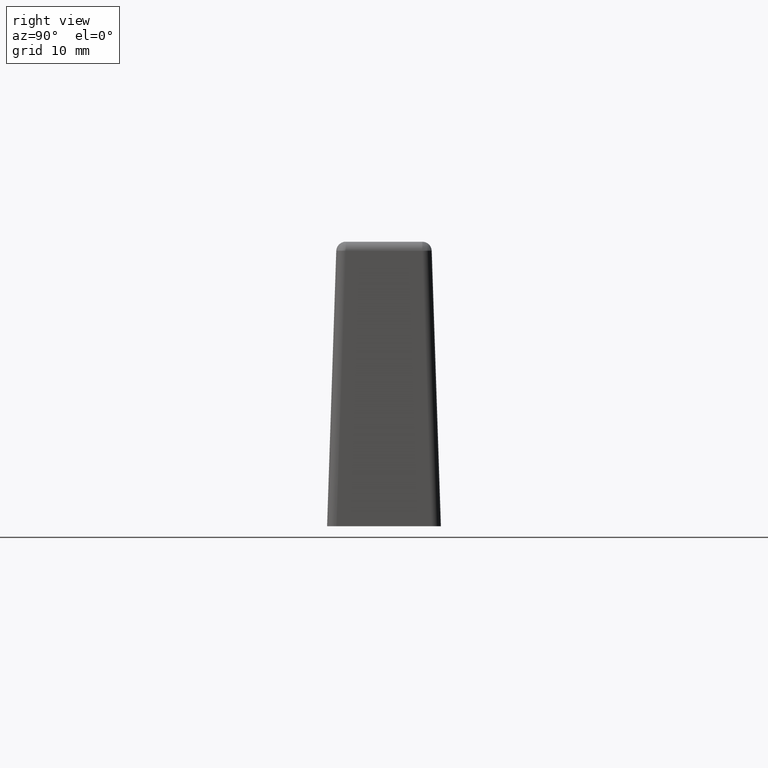
[diagram: clean part render]
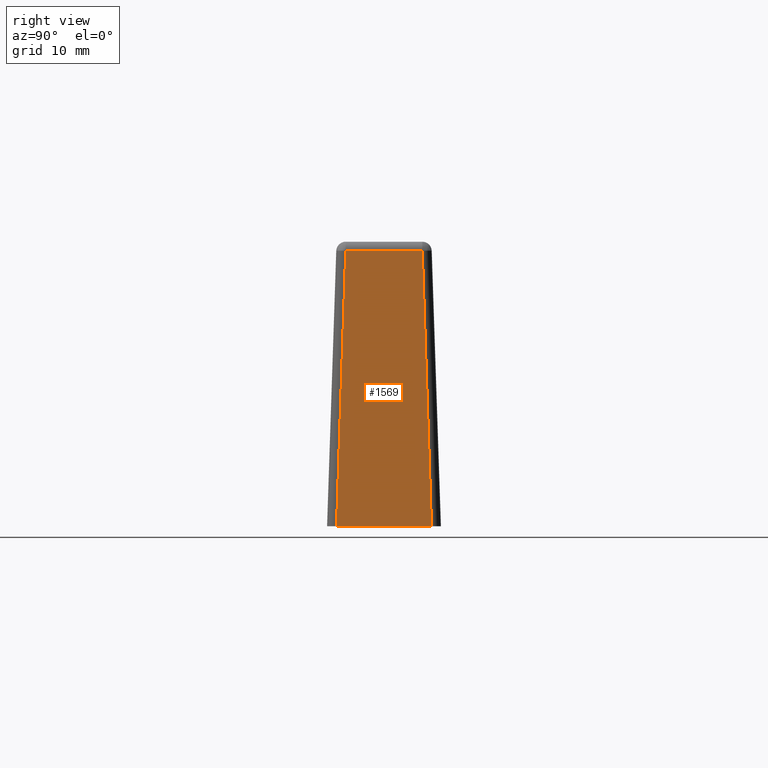
[diagram: same view with one face highlighted and labeled with its STEP entity id]
A machine part, right view. The second image highlights one B-rep face of the part: STEP entity #1569.
In plain terms, the highlighted face is a freeform B-spline surface patch.
Its self-contained STEP definition (entity closure, byte-faithful):
#992=CARTESIAN_POINT('',(34.032189467089196,-4.032544596117241,29.033315976440299));
#993=VERTEX_POINT('',#992);
#1038=CARTESIAN_POINT('',(35.0,-5.000555131204679,0.0));
#1039=VERTEX_POINT('',#1038);
#1055=CARTESIAN_POINT('',(34.032189467089196,-4.032544596117241,29.033315976440299));
#1056=CARTESIAN_POINT('',(35.0,-5.000555131204679,0.0));
#1057=QUASI_UNIFORM_CURVE('',1,(#1055,#1056),.UNSPECIFIED.,.F.,.U.);
#1058=EDGE_CURVE('',#993,#1039,#1057,.T.);
#1085=CARTESIAN_POINT('',(34.032189467089196,4.032544596117241,29.033315976440299));
#1086=VERTEX_POINT('',#1085);
#1100=CARTESIAN_POINT('',(35.0,5.000555131204790,0.0));
#1101=VERTEX_POINT('',#1100);
#1102=CARTESIAN_POINT('',(35.0,5.000555131204790,0.0));
#1103=CARTESIAN_POINT('',(34.032189467089196,4.032544596117241,29.033315976440299));
#1104=QUASI_UNIFORM_CURVE('',1,(#1102,#1103),.UNSPECIFIED.,.F.,.U.);
#1105=EDGE_CURVE('',#1101,#1086,#1104,.T.);
#1381=CARTESIAN_POINT('',(34.032189467089196,4.032544596117241,29.033315976440299));
#1382=CARTESIAN_POINT('',(34.032189467089196,-4.032544596117241,29.033315976440299));
#1383=QUASI_UNIFORM_CURVE('',1,(#1381,#1382),.UNSPECIFIED.,.F.,.U.);
#1384=EDGE_CURVE('',#1086,#993,#1383,.T.);
#1495=CARTESIAN_POINT('',(35.0,5.000555131204790,0.0));
#1496=CARTESIAN_POINT('',(35.0,-5.000555131204679,0.0));
#1497=QUASI_UNIFORM_CURVE('',1,(#1495,#1496),.UNSPECIFIED.,.F.,.U.);
#1498=EDGE_CURVE('',#1101,#1039,#1497,.T.);
#1558=CARTESIAN_POINT('',(35.048342134243107,-5.500110475544672,-1.450214076750992));
#1559=CARTESIAN_POINT('',(33.983847306887391,-5.500110475544672,30.483530831925510));
#1560=CARTESIAN_POINT('',(35.048342134243107,5.500110833212356,-1.450214076750992));
#1561=CARTESIAN_POINT('',(33.983847306887391,5.500110833212356,30.483530831925510));
#1562=B_SPLINE_SURFACE_WITH_KNOTS('',1,1,((#1558,#1560),(#1559,#1561)),.UNSPECIFIED.,.F.,.F.,.U.,(2,2),(2,2),(0.0,31.951482174226118),(0.0,11.000221308757030),.UNSPECIFIED.);
#1563=ORIENTED_EDGE('',*,*,#1384,.T.);
#1564=ORIENTED_EDGE('',*,*,#1058,.T.);
#1565=ORIENTED_EDGE('',*,*,#1498,.F.);
#1566=ORIENTED_EDGE('',*,*,#1105,.T.);
#1567=EDGE_LOOP('',(#1563,#1564,#1565,#1566));
#1568=FACE_OUTER_BOUND('',#1567,.T.);
#1569=ADVANCED_FACE('',(#1568),#1562,.F.);